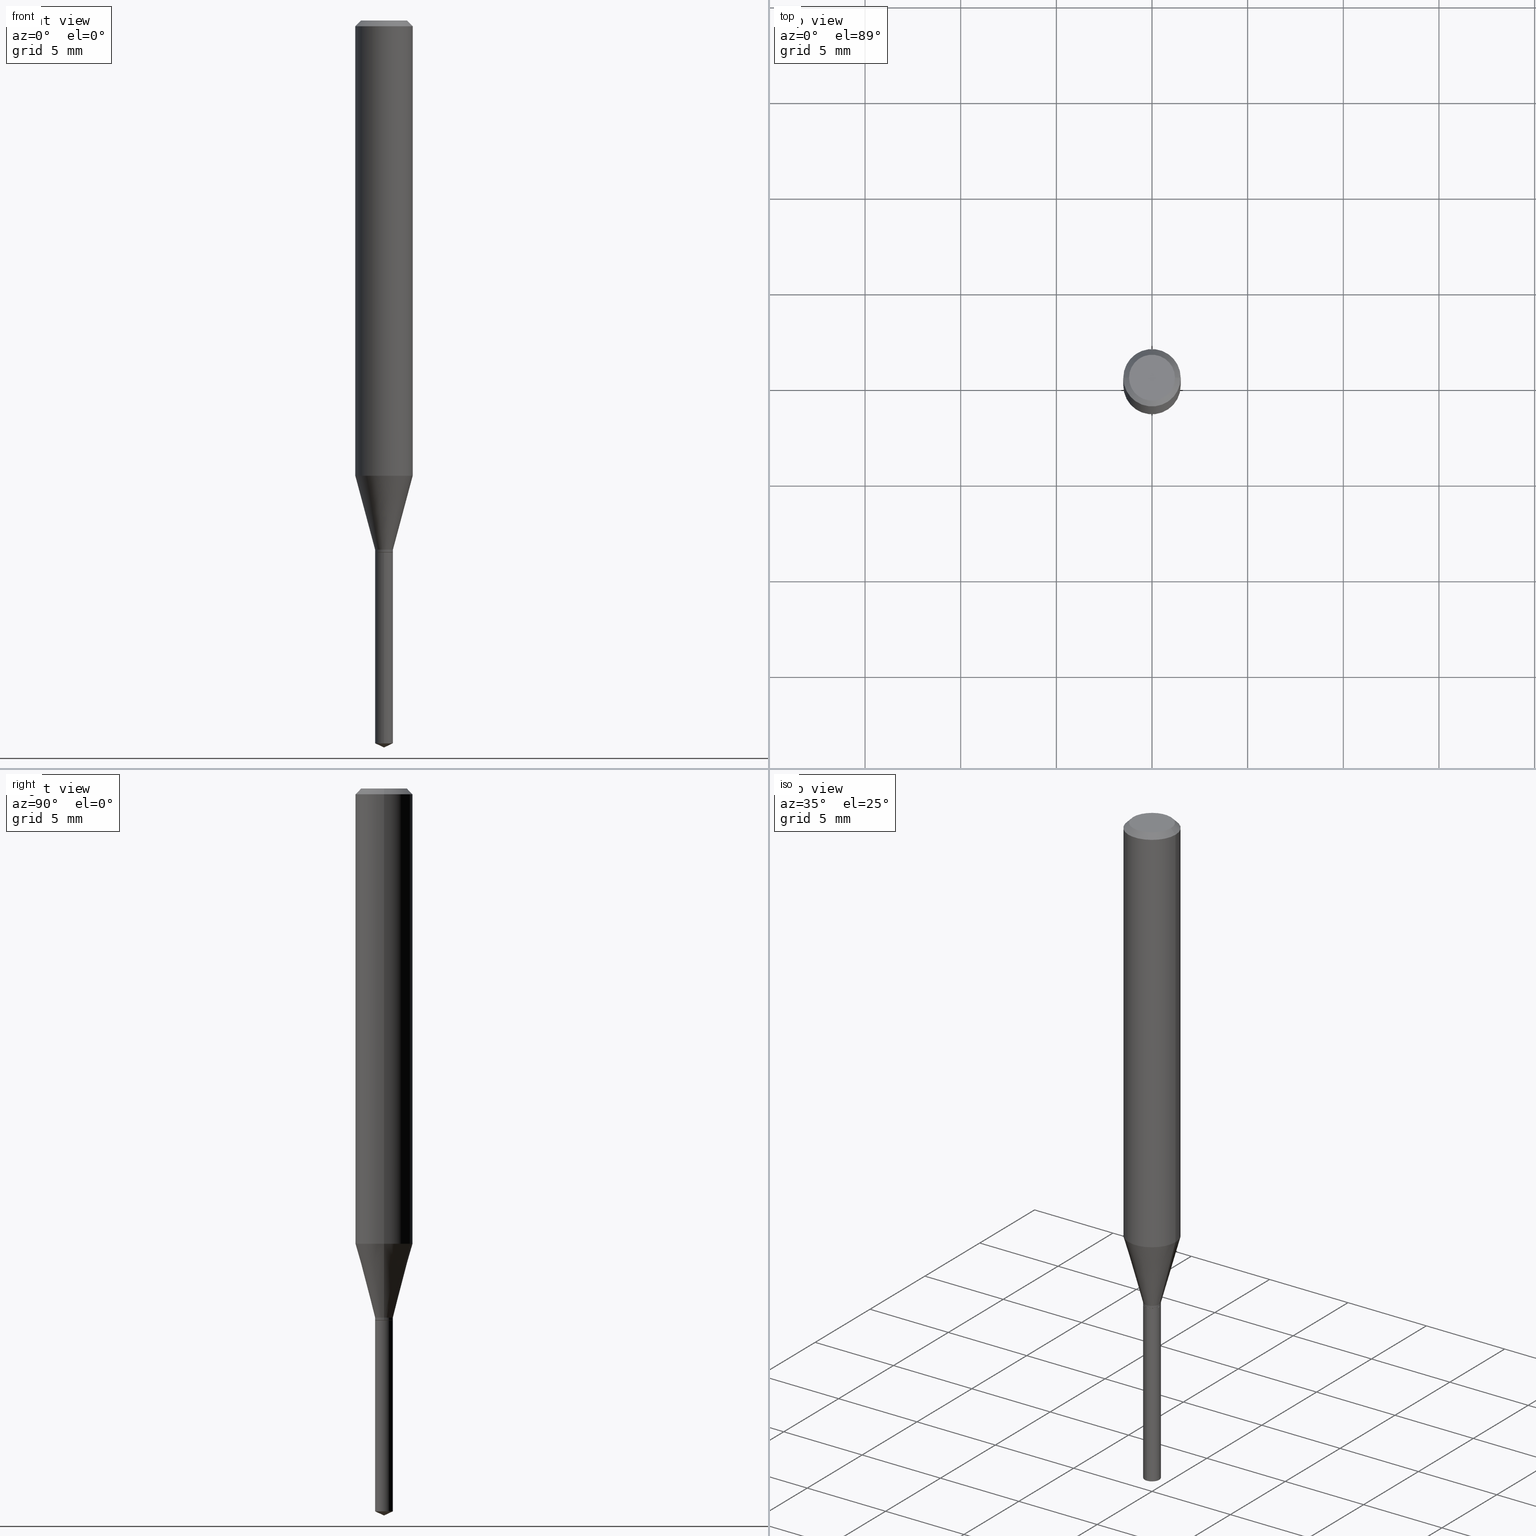
[diagram: canonical four-view strip — front | top / right | iso, engineering-drawing reading convention]
A machine part, canonical four-view strip (front | top / right | iso — engineering-drawing reading convention). The complete STEP part file that produces these views, byte-faithful:
ISO-10303-21;
HEADER;
FILE_DESCRIPTION (( 'STEP AP203' ),
    '1' );
FILE_NAME ('08138.STEP',
    '2024-04-24T12:46:21',
    ( '' ),
    ( '' ),
    'SwSTEP 2.0',
    'SolidWorks 2023',
    '' );
FILE_SCHEMA (( 'CONFIG_CONTROL_DESIGN' ));
ENDSEC;

DATA;
#1 = CIRCLE ( 'NONE', #402, 0.01830000000000000029 ) ;
#2 = CYLINDRICAL_SURFACE ( 'NONE', #373, 0.01830000000000000029 ) ;
#3 = ORIENTED_EDGE ( 'NONE', *, *, #226, .T. ) ;
#4 = FACE_OUTER_BOUND ( 'NONE', #58, .T. ) ;
#5 = ORIENTED_EDGE ( 'NONE', *, *, #30, .T. ) ;
#6 = CARTESIAN_POINT ( 'NONE',  ( 2.888098660104663328E-31, -4.123439461173779030E-17, -0.01181000000000006871 ) ) ;
#7 = ADVANCED_FACE ( 'NONE', ( #104 ), #478, .T. ) ;
#8 = DIRECTION ( 'NONE',  ( 6.982962677686265922E-15, 1.000000000000000000, -3.491492925458510144E-15 ) ) ;
#9 = EDGE_CURVE ( 'NONE', #136, #256, #16, .T. ) ;
#10 = CARTESIAN_POINT ( 'NONE',  ( 3.658671642415649744E-29, -5.223597202677443246E-15, -1.496099999999999985 ) ) ;
#11 = PERSON_AND_ORGANIZATION ( #218, #198 ) ;
#12 = DIRECTION ( 'NONE',  ( 1.000000000000000000, -6.982962677686255667E-15, 0.000000000000000000 ) ) ;
#13 = CALENDAR_DATE ( 2024, 24, 4 ) ;
#14 = CARTESIAN_POINT ( 'NONE',  ( -9.261931828548885815E-28, 1.322367415117763772E-13, 37.87397874015748300 ) ) ;
#15 = ORIENTED_EDGE ( 'NONE', *, *, #46, .F. ) ;
#16 = CIRCLE ( 'NONE', #195, 0.01830000000000000029 ) ;
#17 = AXIS2_PLACEMENT_3D ( 'NONE', #426, #466, #8 ) ;
#18 = PERSON_AND_ORGANIZATION ( #218, #198 ) ;
#19 = DIRECTION ( 'NONE',  ( -6.982962677686265922E-15, -1.000000000000000000, 0.000000000000000000 ) ) ;
#20 = EDGE_LOOP ( 'NONE', ( #413, #101 ) ) ;
#21 = COORDINATED_UNIVERSAL_TIME_OFFSET ( 5, 0, .BEHIND. ) ;
#22 = ORIENTED_EDGE ( 'NONE', *, *, #60, .F. ) ;
#23 = CARTESIAN_POINT ( 'NONE',  ( 0.05905000000000005383, -4.123439461173744271E-16, 2.879382386107502672E-30 ) ) ;
#24 = PRODUCT_RELATED_PRODUCT_CATEGORY ( 'detail', '', ( #433 ) ) ;
#25 = EDGE_CURVE ( 'NONE', #217, #335, #109, .T. ) ;
#26 = ORIENTED_EDGE ( 'NONE', *, *, #30, .F. ) ;
#27 = LOCAL_TIME ( 8, 46, 21.00000000000000000, #476 ) ;
#28 = APPLICATION_PROTOCOL_DEFINITION ( 'international standard', 'config_control_design', 1994, #96 ) ;
#29 = VERTEX_POINT ( 'NONE', #326 ) ;
#30 = EDGE_CURVE ( 'NONE', #64, #382, #375, .T. ) ;
#31 = CARTESIAN_POINT ( 'NONE',  ( 0.01830000000000000029, -3.930011395001844240E-15, -1.088999999999999968 ) ) ;
#32 = EDGE_CURVE ( 'NONE', #29, #329, #33, .T. ) ;
#33 = LINE ( 'NONE', #371, #272 ) ;
#34 = DIRECTION ( 'NONE',  ( -2.445468806185136877E-29, 3.491481338843145188E-15, 1.000000000000000000 ) ) ;
#35 = DATE_AND_TIME ( #419, #341 ) ;
#36 = EDGE_LOOP ( 'NONE', ( #449, #349, #351, #53 ) ) ;
#37 = CIRCLE ( 'NONE', #320, 0.01830000000000000029 ) ;
#38 = FACE_OUTER_BOUND ( 'NONE', #163, .T. ) ;
#39 = DIRECTION ( 'NONE',  ( -6.982962677686265922E-15, -1.000000000000000000, 0.000000000000000000 ) ) ;
#40 = ORIENTED_EDGE ( 'NONE', *, *, #428, .F. ) ;
#41 = LINE ( 'NONE', #45, #84 ) ;
#42 = VECTOR ( 'NONE', #360, 39.37007874015748143 ) ;
#43 = CYLINDRICAL_SURFACE ( 'NONE', #157, 0.01830000000000000029 ) ;
#44 = ORIENTED_EDGE ( 'NONE', *, *, #60, .T. ) ;
#45 = CARTESIAN_POINT ( 'NONE',  ( -0.01830000000000000029, 1.300293206440983361E-16, -9.001651215166479231E-31 ) ) ;
#46 = EDGE_CURVE ( 'NONE', #382, #329, #55, .T. ) ;
#47 = DIRECTION ( 'NONE',  ( -2.445468806185136597E-29, 3.491481338843145583E-15, 1.000000000000000000 ) ) ;
#48 = CYLINDRICAL_SURFACE ( 'NONE', #240, 0.01830000000000000029 ) ;
#49 = CONICAL_SURFACE ( 'NONE', #387, 84.42940631927388040, 1.134464013796313786 ) ;
#50 = COORDINATED_UNIVERSAL_TIME_OFFSET ( 5, 0, .BEHIND. ) ;
#51 = CARTESIAN_POINT ( 'NONE',  ( 0.01830000000000000029, -3.947468801696059275E-15, -1.093999999999999861 ) ) ;
#52 = CARTESIAN_POINT ( 'NONE',  ( 2.676565608369631794E-29, -3.821426325363822773E-15, -1.094499999999999806 ) ) ;
#53 = ORIENTED_EDGE ( 'NONE', *, *, #113, .F. ) ;
#54 = FACE_OUTER_BOUND ( 'NONE', #268, .T. ) ;
#55 = CIRCLE ( 'NONE', #303, 0.05905000000000010241 ) ;
#56 = AXIS2_PLACEMENT_3D ( 'NONE', #390, #167, #120 ) ;
#57 = CYLINDRICAL_SURFACE ( 'NONE', #394, 0.05905000000000005383 ) ;
#58 = EDGE_LOOP ( 'NONE', ( #153, #44, #5, #66 ) ) ;
#59 = EDGE_CURVE ( 'NONE', #191, #222, #316, .T. ) ;
#60 = EDGE_CURVE ( 'NONE', #29, #64, #204, .T. ) ;
#61 =( NAMED_UNIT ( * ) SI_UNIT ( $, .STERADIAN. ) SOLID_ANGLE_UNIT ( ) );
#62 = DATE_AND_TIME ( #290, #166 ) ;
#63 = ORIENTED_EDGE ( 'NONE', *, *, #95, .F. ) ;
#64 = VERTEX_POINT ( 'NONE', #108 ) ;
#65 = DIRECTION ( 'NONE',  ( 2.438088387897960049E-29, -3.491481338843145188E-15, -1.000000000000000000 ) ) ;
#66 = ORIENTED_EDGE ( 'NONE', *, *, #386, .F. ) ;
#67 = LINE ( 'NONE', #408, #97 ) ;
#68 = EDGE_CURVE ( 'NONE', #136, #29, #41, .T. ) ;
#69 = DIRECTION ( 'NONE',  ( 2.445468806185136597E-29, -3.491481338843145583E-15, -1.000000000000000000 ) ) ;
#70 = DIRECTION ( 'NONE',  ( 1.000000000000000000, -6.982962677686266711E-15, 4.876185090822587894E-29 ) ) ;
#71 = PERSON_AND_ORGANIZATION_ROLE ( 'creator' ) ;
#72 = PRODUCT_DEFINITION_SHAPE ( 'NONE', 'NONE',  #287 ) ;
#73 = LINE ( 'NONE', #264, #110 ) ;
#74 = ORIENTED_EDGE ( 'NONE', *, *, #246, .F. ) ;
#75 = AXIS2_PLACEMENT_3D ( 'NONE', #134, #216, #144 ) ;
#76 = CARTESIAN_POINT ( 'NONE',  ( 3.658653776152655930E-29, -5.223622565778476142E-15, -1.496099999999999985 ) ) ;
#77 = DIRECTION ( 'NONE',  ( -2.445468806185136597E-29, 3.491481338843145583E-15, 1.000000000000000000 ) ) ;
#78 = DIRECTION ( 'NONE',  ( -2.445468806185136597E-29, 3.491481338843145583E-15, 1.000000000000000000 ) ) ;
#79 = AXIS2_PLACEMENT_3D ( 'NONE', #424, #82, #237 ) ;
#80 = DIRECTION ( 'NONE',  ( -2.445468806185136597E-29, 3.491481338843145583E-15, 1.000000000000000000 ) ) ;
#81 = CC_DESIGN_PERSON_AND_ORGANIZATION_ASSIGNMENT ( #18, #92, ( #241 ) ) ;
#82 = DIRECTION ( 'NONE',  ( -2.445468806185136597E-29, 3.491481338843145583E-15, 1.000000000000000000 ) ) ;
#83 = CARTESIAN_POINT ( 'NONE',  ( 0.01780000000000000332, -3.945723061026637772E-15, -1.094499999999999806 ) ) ;
#84 = VECTOR ( 'NONE', #201, 39.37007874015748143 ) ;
#85 = CARTESIAN_POINT ( 'NONE',  ( -0.05905000000000010241, -2.851659473211515038E-15, -0.9369189295915679727 ) ) ;
#86 = VECTOR ( 'NONE', #251, 39.37007874015748143 ) ;
#87 = LOCAL_TIME ( 8, 46, 21.00000000000000000, #50 ) ;
#88 = SECURITY_CLASSIFICATION_LEVEL ( 'unclassified' ) ;
#89 = DIRECTION ( 'NONE',  ( -2.445468806185136597E-29, 3.491481338843145583E-15, 1.000000000000000000 ) ) ;
#90 = EDGE_LOOP ( 'NONE', ( #367, #289, #443, #230 ) ) ;
#91 = CARTESIAN_POINT ( 'NONE',  ( 2.675342873966538993E-29, -3.819680584694400481E-15, -1.093999999999999861 ) ) ;
#92 = PERSON_AND_ORGANIZATION_ROLE ( 'creator' ) ;
#93 = CARTESIAN_POINT ( 'NONE',  ( 0.05904999999999999832, -4.535783407291118600E-16, -0.01181000000000006871 ) ) ;
#94 = ORIENTED_EDGE ( 'NONE', *, *, #451, .T. ) ;
#95 = EDGE_CURVE ( 'NONE', #301, #200, #422, .T. ) ;
#96 = APPLICATION_CONTEXT ( 'configuration controlled 3d designs of mechanical parts and assemblies' ) ;
#97 = VECTOR ( 'NONE', #440, 39.37007874015748143 ) ;
#98 = ADVANCED_FACE ( 'NONE', ( #154 ), #2, .T. ) ;
#99 = LINE ( 'NONE', #143, #86 ) ;
#100 = DIRECTION ( 'NONE',  ( 1.000000000000000000, -6.982962677686266711E-15, 4.876176775795935793E-29 ) ) ;
#101 = ORIENTED_EDGE ( 'NONE', *, *, #115, .F. ) ;
#102 = CYLINDRICAL_SURFACE ( 'NONE', #447, 0.05905000000000005383 ) ;
#103 = APPLICATION_CONTEXT ( 'configuration controlled 3d designs of mechanical parts and assemblies' ) ;
#104 = FACE_OUTER_BOUND ( 'NONE', #130, .T. ) ;
#105 = CONICAL_SURFACE ( 'NONE', #359, 84.42940631927388040, 1.134464013796313786 ) ;
#106 = DIRECTION ( 'NONE',  ( 1.000000000000000000, 0.000000000000000000, 0.000000000000000000 ) ) ;
#107 = ADVANCED_BREP_SHAPE_REPRESENTATION ( '08138', ( #293, #128, #412 ), #183 ) ;
#108 = CARTESIAN_POINT ( 'NONE',  ( 0.01830000000000000029, -3.930011395001844240E-15, -1.088999999999999968 ) ) ;
#109 = CIRCLE ( 'NONE', #358, 0.01830000000000000029 ) ;
#110 = VECTOR ( 'NONE', #236, 39.37007874015748143 ) ;
#111 = COORDINATED_UNIVERSAL_TIME_OFFSET ( 5, 0, .BEHIND. ) ;
#112 = DIRECTION ( 'NONE',  ( -6.328713451373368590E-15, -0.9063077870366483824, 0.4226182617407029940 ) ) ;
#113 = EDGE_CURVE ( 'NONE', #200, #416, #172, .T. ) ;
#114 = DIRECTION ( 'NONE',  ( -2.445468806185136597E-29, 3.491481338843145583E-15, 1.000000000000000000 ) ) ;
#115 = EDGE_CURVE ( 'NONE', #488, #249, #259, .T. ) ;
#116 = DIRECTION ( 'NONE',  ( 1.000000000000000000, -6.982962677686266711E-15, 4.876185090822587894E-29 ) ) ;
#117 = AXIS2_PLACEMENT_3D ( 'NONE', #215, #69, #481 ) ;
#118 = AXIS2_PLACEMENT_3D ( 'NONE', #366, #467, #124 ) ;
#119 = DIRECTION ( 'NONE',  ( -6.982962677686267499E-15, -1.000000000000000000, 3.520397390770472803E-15 ) ) ;
#120 = DIRECTION ( 'NONE',  ( 1.000000000000000000, -6.982962677686265922E-15, 4.876176775795935793E-29 ) ) ;
#121 = CARTESIAN_POINT ( 'NONE',  ( 3.658653776152657051E-29, -5.223622565778476142E-15, -1.496099999999999985 ) ) ;
#122 = CARTESIAN_POINT ( 'NONE',  ( 3.637794463447608962E-29, -5.193815473249464484E-15, -1.487566569855763410 ) ) ;
#123 = PERSON_AND_ORGANIZATION_ROLE ( 'design_supplier' ) ;
#124 = DIRECTION ( 'NONE',  ( 1.000000000000000000, -6.982962677686258033E-15, 0.000000000000000000 ) ) ;
#125 = AXIS2_PLACEMENT_3D ( 'NONE', #352, #311, #39 ) ;
#126 = APPROVAL_PERSON_ORGANIZATION ( #135, #262, #322 ) ;
#127 = EDGE_CURVE ( 'NONE', #480, #301, #385, .T. ) ;
#128 = MANIFOLD_SOLID_BREP ( 'Body-Move/Copy2[2]', #278 ) ;
#129 = DIRECTION ( 'NONE',  ( 1.000000000000000000, -6.982962677686258033E-15, 0.000000000000000000 ) ) ;
#130 = EDGE_LOOP ( 'NONE', ( #156, #388, #346, #192 ) ) ;
#131 = CC_DESIGN_DATE_AND_TIME_ASSIGNMENT ( #277, #176, ( #140 ) ) ;
#132 = ADVANCED_FACE ( 'NONE', ( #38 ), #379, .T. ) ;
#133 = APPROVAL_DATE_TIME ( #401, #450 ) ;
#134 = CARTESIAN_POINT ( 'NONE',  ( 2.888098660104663328E-31, -4.123439461173779030E-17, -0.01181000000000006871 ) ) ;
#135 = PERSON_AND_ORGANIZATION ( #218, #198 ) ;
#136 = VERTEX_POINT ( 'NONE', #415 ) ;
#137 = VECTOR ( 'NONE', #112, 39.37007874015748143 ) ;
#138 = CONICAL_SURFACE ( 'NONE', #410, 0.05904999999999999832, 0.7853981633974452814 ) ;
#139 = CARTESIAN_POINT ( 'NONE',  ( 2.676565608369631794E-29, -3.821426325363822773E-15, -1.094499999999999806 ) ) ;
#140 = SECURITY_CLASSIFICATION ( '', '', #88 ) ;
#141 = PERSON_AND_ORGANIZATION ( #218, #198 ) ;
#142 = EDGE_LOOP ( 'NONE', ( #219, #337, #233 ) ) ;
#143 = CARTESIAN_POINT ( 'NONE',  ( 1.300293206441250834E-16, 0.01829999999999617696, -1.094499999999999806 ) ) ;
#144 = DIRECTION ( 'NONE',  ( 1.000000000000000000, -6.982962677686266711E-15, 0.000000000000000000 ) ) ;
#145 = ORIENTED_EDGE ( 'NONE', *, *, #68, .F. ) ;
#146 = CARTESIAN_POINT ( 'NONE',  ( 2.675342873966538993E-29, -3.819680584694400481E-15, -1.093999999999999861 ) ) ;
#147 = AXIS2_PLACEMENT_3D ( 'NONE', #6, #80, #308 ) ;
#148 = AXIS2_PLACEMENT_3D ( 'NONE', #181, #332, #227 ) ;
#149 = APPROVAL_STATUS ( 'not_yet_approved' ) ;
#150 = ORIENTED_EDGE ( 'NONE', *, *, #32, .T. ) ;
#151 = ADVANCED_FACE ( 'NONE', ( #456 ), #49, .T. ) ;
#152 = FACE_OUTER_BOUND ( 'NONE', #90, .T. ) ;
#153 = ORIENTED_EDGE ( 'NONE', *, *, #32, .F. ) ;
#154 = FACE_OUTER_BOUND ( 'NONE', #404, .T. ) ;
#155 = CLOSED_SHELL ( 'NONE', ( #132, #378, #151, #161, #229 ) ) ;
#156 = ORIENTED_EDGE ( 'NONE', *, *, #171, .F. ) ;
#157 = AXIS2_PLACEMENT_3D ( 'NONE', #461, #263, #452 ) ;
#158 = APPROVAL_PERSON_ORGANIZATION ( #324, #450, #250 ) ;
#159 = DESIGN_CONTEXT ( 'detailed design', #103, 'design' ) ;
#160 = CARTESIAN_POINT ( 'NONE',  ( -0.05904999999999999832, -1.236659191178456045E-15, -0.01181000000000006871 ) ) ;
#161 = ADVANCED_FACE ( 'NONE', ( #152 ), #43, .T. ) ;
#162 = DIRECTION ( 'NONE',  ( -2.445460715294871217E-29, 3.491492925458510144E-15, 1.000000000000000000 ) ) ;
#163 = EDGE_LOOP ( 'NONE', ( #380, #407, #190, #306 ) ) ;
#164 = DIRECTION ( 'NONE',  ( 1.000000000000000000, -6.982962677686255667E-15, 0.000000000000000000 ) ) ;
#165 = CARTESIAN_POINT ( 'NONE',  ( 0.01780000000000000332, -3.945723061026637772E-15, -1.094499999999999806 ) ) ;
#166 = LOCAL_TIME ( 8, 46, 21.00000000000000000, #406 ) ;
#167 = DIRECTION ( 'NONE',  ( -2.438088387897960049E-29, 3.491481338843145188E-15, 1.000000000000000000 ) ) ;
#168 = EDGE_CURVE ( 'NONE', #222, #335, #73, .T. ) ;
#169 = SHAPE_DEFINITION_REPRESENTATION ( #72, #107 ) ;
#170 = DIRECTION ( 'NONE',  ( -2.445468806185136597E-29, 3.491481338843145583E-15, 1.000000000000000000 ) ) ;
#171 = EDGE_CURVE ( 'NONE', #480, #416, #234, .T. ) ;
#172 = CIRCLE ( 'NONE', #147, 0.05904999999999999832 ) ;
#173 = CARTESIAN_POINT ( 'NONE',  ( 2.676565608369631794E-29, -3.821426325363822773E-15, -1.094499999999999806 ) ) ;
#174 = AXIS2_PLACEMENT_3D ( 'NONE', #336, #65, #484 ) ;
#175 = APPROVAL_PERSON_ORGANIZATION ( #446, #274, #298 ) ;
#176 = DATE_TIME_ROLE ( 'classification_date' ) ;
#177 = ADVANCED_FACE ( 'NONE', ( #4 ), #285, .T. ) ;
#178 = DIRECTION ( 'NONE',  ( -2.445460715294871217E-29, 3.491492925458510144E-15, 1.000000000000000000 ) ) ;
#179 = EDGE_LOOP ( 'NONE', ( #145, #247, #399, #22 ) ) ;
#180 = ORIENTED_EDGE ( 'NONE', *, *, #246, .T. ) ;
#181 = CARTESIAN_POINT ( 'NONE',  ( 3.637794463447608962E-29, -5.193815473249464484E-15, -1.487566569855763410 ) ) ;
#182 = EDGE_LOOP ( 'NONE', ( #435, #338, #94, #63 ) ) ;
#183 =( GEOMETRIC_REPRESENTATION_CONTEXT ( 3 ) GLOBAL_UNCERTAINTY_ASSIGNED_CONTEXT ( ( #354 ) ) GLOBAL_UNIT_ASSIGNED_CONTEXT ( ( #295, #411, #61 ) ) REPRESENTATION_CONTEXT ( 'NONE', 'WORKASPACE' ) );
#184 = AXIS2_PLACEMENT_3D ( 'NONE', #122, #239, #315 ) ;
#185 = ORIENTED_EDGE ( 'NONE', *, *, #127, .T. ) ;
#186 = CARTESIAN_POINT ( 'NONE',  ( 0.000000000000000000, 0.000000000000000000, 0.000000000000000000 ) ) ;
#187 = CIRCLE ( 'NONE', #75, 0.05904999999999999832 ) ;
#188 = EDGE_CURVE ( 'NONE', #329, #200, #302, .T. ) ;
#189 = CARTESIAN_POINT ( 'NONE',  ( 2.663115529935613220E-29, -3.802223178000185445E-15, -1.088999999999999968 ) ) ;
#190 = ORIENTED_EDGE ( 'NONE', *, *, #369, .F. ) ;
#191 = VERTEX_POINT ( 'NONE', #76 ) ;
#192 = ORIENTED_EDGE ( 'NONE', *, *, #113, .T. ) ;
#193 = DATE_TIME_ROLE ( 'creation_date' ) ;
#194 = CARTESIAN_POINT ( 'NONE',  ( -0.05905000000000005383, 4.195754854663395423E-16, -2.904631170795524694E-30 ) ) ;
#195 = AXIS2_PLACEMENT_3D ( 'NONE', #146, #291, #477 ) ;
#196 = ORIENTED_EDGE ( 'NONE', *, *, #487, .F. ) ;
#197 = AXIS2_PLACEMENT_3D ( 'NONE', #173, #89, #12 ) ;
#198 = ORGANIZATION ( 'UNSPECIFIED', 'UNSPECIFIED', '' ) ;
#199 = DIRECTION ( 'NONE',  ( -6.982962677686267499E-15, -1.000000000000000000, 3.520397390770472803E-15 ) ) ;
#200 = VERTEX_POINT ( 'NONE', #160 ) ;
#201 = DIRECTION ( 'NONE',  ( -2.445468806185136877E-29, 3.491481338843145188E-15, 1.000000000000000000 ) ) ;
#202 = CARTESIAN_POINT ( 'NONE',  ( 2.291206016240548157E-29, -3.271234958677854531E-15, -0.9369189295915679727 ) ) ;
#203 = FACE_OUTER_BOUND ( 'NONE', #179, .T. ) ;
#204 = CIRCLE ( 'NONE', #468, 0.01830000000000000029 ) ;
#205 = CIRCLE ( 'NONE', #79, 0.05905000000000010241 ) ;
#206 = DIRECTION ( 'NONE',  ( -2.445468806185136597E-29, 3.491481338843145583E-15, 1.000000000000000000 ) ) ;
#207 = CC_DESIGN_DATE_AND_TIME_ASSIGNMENT ( #35, #193, ( #287 ) ) ;
#208 = LINE ( 'NONE', #276, #42 ) ;
#209 = ADVANCED_FACE ( 'NONE', ( #347 ), #138, .T. ) ;
#210 = DIRECTION ( 'NONE',  ( -2.445460715294871217E-29, 3.491492925458510144E-15, 1.000000000000000000 ) ) ;
#211 = CC_DESIGN_PERSON_AND_ORGANIZATION_ASSIGNMENT ( #265, #71, ( #287 ) ) ;
#212 = DIRECTION ( 'NONE',  ( 1.000000000000000000, -6.982962677686258033E-15, 0.000000000000000000 ) ) ;
#213 = CIRCLE ( 'NONE', #418, 0.01780000000000000332 ) ;
#214 = VERTEX_POINT ( 'NONE', #307 ) ;
#215 = CARTESIAN_POINT ( 'NONE',  ( 2.888098660104663328E-31, -4.123439461173779030E-17, -0.01181000000000006871 ) ) ;
#216 = DIRECTION ( 'NONE',  ( -2.445468806185136597E-29, 3.491481338843145583E-15, 1.000000000000000000 ) ) ;
#217 = VERTEX_POINT ( 'NONE', #421 ) ;
#218 = PERSON ( 'UNSPECIFIED', 'UNSPECIFIED', 'UNSPECIFIED', ('UNSPECIFIED'), ('UNSPECIFIED'), ('UNSPECIFIED') ) ;
#219 = ORIENTED_EDGE ( 'NONE', *, *, #312, .F. ) ;
#220 = LENGTH_MEASURE_WITH_UNIT ( LENGTH_MEASURE( 0.02539999999999999897 ), #405 );
#221 = APPROVAL_DATE_TIME ( #62, #262 ) ;
#222 = VERTEX_POINT ( 'NONE', #384 ) ;
#223 = CIRCLE ( 'NONE', #365, 0.01830000000000000029 ) ;
#224 = DIRECTION ( 'NONE',  ( -6.982962677686265922E-15, -1.000000000000000000, 0.000000000000000000 ) ) ;
#225 = LINE ( 'NONE', #23, #458 ) ;
#226 = EDGE_CURVE ( 'NONE', #249, #488, #213, .T. ) ;
#227 = DIRECTION ( 'NONE',  ( -6.982962677686265922E-15, -1.000000000000000000, 0.000000000000000000 ) ) ;
#228 = ADVANCED_FACE ( 'NONE', ( #245 ), #430, .T. ) ;
#229 = ADVANCED_FACE ( 'NONE', ( #54 ), #280, .F. ) ;
#230 = ORIENTED_EDGE ( 'NONE', *, *, #25, .F. ) ;
#231 = DIRECTION ( 'NONE',  ( -2.445468806185136597E-29, 3.491481338843145583E-15, 1.000000000000000000 ) ) ;
#232 = CONICAL_SURFACE ( 'NONE', #197, 0.01780000000000000332, 0.7853981633974119747 ) ;
#233 = ORIENTED_EDGE ( 'NONE', *, *, #271, .F. ) ;
#234 = LINE ( 'NONE', #270, #333 ) ;
#235 = DIRECTION ( 'NONE',  ( 0.7071067811865453523, -7.319954787623248157E-15, -0.7071067811865496822 ) ) ;
#236 = DIRECTION ( 'NONE',  ( -2.445460715294871217E-29, 3.491492925458510144E-15, 1.000000000000000000 ) ) ;
#237 = DIRECTION ( 'NONE',  ( 1.000000000000000000, -6.982962677686268288E-15, 0.000000000000000000 ) ) ;
#238 = EDGE_CURVE ( 'NONE', #249, #256, #437, .T. ) ;
#239 = DIRECTION ( 'NONE',  ( -2.445460715294871217E-29, 3.491492925458510144E-15, 1.000000000000000000 ) ) ;
#240 = AXIS2_PLACEMENT_3D ( 'NONE', #325, #462, #279 ) ;
#241 = PRODUCT_DEFINITION_FORMATION_WITH_SPECIFIED_SOURCE ( 'ANY', '', #433, .NOT_KNOWN. ) ;
#242 = CARTESIAN_POINT ( 'NONE',  ( -1.277882170016318992E-16, -0.01830000000000382362, -1.094499999999999806 ) ) ;
#243 = CC_DESIGN_APPROVAL ( #262, ( #287 ) ) ;
#244 = APPROVAL_STATUS ( 'not_yet_approved' ) ;
#245 = FACE_OUTER_BOUND ( 'NONE', #258, .T. ) ;
#246 = EDGE_CURVE ( 'NONE', #256, #136, #223, .T. ) ;
#247 = ORIENTED_EDGE ( 'NONE', *, *, #9, .T. ) ;
#248 = PLANE ( 'NONE',  #56 ) ;
#249 = VERTEX_POINT ( 'NONE', #83 ) ;
#250 = APPROVAL_ROLE ( '' ) ;
#251 = DIRECTION ( 'NONE',  ( -2.445460715294871217E-29, 3.491492925458510144E-15, 1.000000000000000000 ) ) ;
#252 = VECTOR ( 'NONE', #317, 39.37007874015748143 ) ;
#253 = CARTESIAN_POINT ( 'NONE',  ( -0.01780000000000000332, -3.692300491224413469E-15, -1.094499999999999806 ) ) ;
#254 = APPROVAL_STATUS ( 'not_yet_approved' ) ;
#255 = CC_DESIGN_PERSON_AND_ORGANIZATION_ASSIGNMENT ( #141, #381, ( #433 ) ) ;
#256 = VERTEX_POINT ( 'NONE', #51 ) ;
#257 = DIRECTION ( 'NONE',  ( -2.445468806185136597E-29, 3.491481338843145583E-15, 1.000000000000000000 ) ) ;
#258 = EDGE_LOOP ( 'NONE', ( #3, #453, #74, #483 ) ) ;
#259 = CIRCLE ( 'NONE', #392, 0.01780000000000000332 ) ;
#260 = AXIS2_PLACEMENT_3D ( 'NONE', #189, #78, #383 ) ;
#261 = MECHANICAL_CONTEXT ( 'NONE', #96, 'mechanical' ) ;
#262 = APPROVAL ( #254, 'UNSPECIFIED' ) ;
#263 = DIRECTION ( 'NONE',  ( -2.445460715294871217E-29, 3.491492925458510144E-15, 1.000000000000000000 ) ) ;
#264 = CARTESIAN_POINT ( 'NONE',  ( -1.277882170016318992E-16, -0.01830000000000382362, -1.094499999999999806 ) ) ;
#265 = PERSON_AND_ORGANIZATION ( #218, #198 ) ;
#266 = CARTESIAN_POINT ( 'NONE',  ( -0.05904999999999999832, 3.711095515056362547E-16, -0.01181000000000006871 ) ) ;
#267 = ORIENTED_EDGE ( 'NONE', *, *, #238, .T. ) ;
#268 = EDGE_LOOP ( 'NONE', ( #438, #423 ) ) ;
#269 = CARTESIAN_POINT ( 'NONE',  ( 2.663115529935613220E-29, -3.802223178000185445E-15, -1.088999999999999968 ) ) ;
#270 = CARTESIAN_POINT ( 'NONE',  ( 0.05904999999999999832, -4.463468013801466955E-16, -0.01181000000000006871 ) ) ;
#271 = EDGE_CURVE ( 'NONE', #214, #222, #304, .T. ) ;
#272 = VECTOR ( 'NONE', #288, 39.37007874015748854 ) ;
#273 = CARTESIAN_POINT ( 'NONE',  ( 0.05905000000000010241, -3.683578904795229057E-15, -0.9369189295915679727 ) ) ;
#274 = APPROVAL ( #149, 'UNSPECIFIED' ) ;
#275 = DIRECTION ( 'NONE',  ( 1.000000000000000000, -6.982962677686255667E-15, 0.000000000000000000 ) ) ;
#276 = CARTESIAN_POINT ( 'NONE',  ( 0.01830000000000000029, -1.277882170016586711E-16, 8.923403499706563286E-31 ) ) ;
#277 = DATE_AND_TIME ( #13, #87 ) ;
#278 = CLOSED_SHELL ( 'NONE', ( #228, #209, #463, #353, #98, #286, #177, #432, #7, #427, #310, #294 ) ) ;
#279 = DIRECTION ( 'NONE',  ( 1.000000000000000000, -6.982962677686265922E-15, 4.876176775795936353E-29 ) ) ;
#280 = PLANE ( 'NONE',  #17 ) ;
#281 = EDGE_LOOP ( 'NONE', ( #474, #185 ) ) ;
#282 = FACE_OUTER_BOUND ( 'NONE', #36, .T. ) ;
#283 = DIRECTION ( 'NONE',  ( 0.2588190451025211281, 1.565188264969622954E-15, 0.9659258262890679791 ) ) ;
#284 = FACE_OUTER_BOUND ( 'NONE', #444, .T. ) ;
#285 = CONICAL_SURFACE ( 'NONE', #260, 0.01830000000000000029, 0.2617993877991498519 ) ;
#286 = ADVANCED_FACE ( 'NONE', ( #203 ), #48, .T. ) ;
#287 = PRODUCT_DEFINITION ( 'UNKNOWN', '', #241, #159 ) ;
#288 = DIRECTION ( 'NONE',  ( -0.2588190451025211281, 5.211531920934547886E-15, 0.9659258262890679791 ) ) ;
#289 = ORIENTED_EDGE ( 'NONE', *, *, #271, .T. ) ;
#290 = CALENDAR_DATE ( 2024, 24, 4 ) ;
#291 = DIRECTION ( 'NONE',  ( -2.445468806185136597E-29, 3.491481338843145583E-15, 1.000000000000000000 ) ) ;
#292 = EDGE_CURVE ( 'NONE', #256, #64, #208, .T. ) ;
#293 = MANIFOLD_SOLID_BREP ( 'Body-Move/Copy2[1]', #155 ) ;
#294 = ADVANCED_FACE ( 'NONE', ( #362 ), #232, .T. ) ;
#295 =( CONVERSION_BASED_UNIT ( 'INCH', #220 ) LENGTH_UNIT ( ) NAMED_UNIT ( #345 ) );
#296 = VECTOR ( 'NONE', #283, 39.37007874015748854 ) ;
#297 = VECTOR ( 'NONE', #472, 39.37007874015748143 ) ;
#298 = APPROVAL_ROLE ( '' ) ;
#299 = ORIENTED_EDGE ( 'NONE', *, *, #68, .T. ) ;
#300 = CARTESIAN_POINT ( 'NONE',  ( 2.676565608369631794E-29, -3.821426325363822773E-15, -1.094499999999999806 ) ) ;
#301 = VERTEX_POINT ( 'NONE', #396 ) ;
#302 = LINE ( 'NONE', #194, #455 ) ;
#303 = AXIS2_PLACEMENT_3D ( 'NONE', #202, #356, #425 ) ;
#304 = CIRCLE ( 'NONE', #184, 0.01830000000000000029 ) ;
#305 = CC_DESIGN_APPROVAL ( #274, ( #241 ) ) ;
#306 = ORIENTED_EDGE ( 'NONE', *, *, #168, .F. ) ;
#307 = CARTESIAN_POINT ( 'NONE',  ( 1.300293206441347223E-16, 0.01829999999999480653, -1.487566569855763410 ) ) ;
#308 = DIRECTION ( 'NONE',  ( 1.000000000000000000, -6.982962677686266711E-15, 0.000000000000000000 ) ) ;
#309 = ORIENTED_EDGE ( 'NONE', *, *, #9, .F. ) ;
#310 = ADVANCED_FACE ( 'NONE', ( #429 ), #248, .F. ) ;
#311 = DIRECTION ( 'NONE',  ( -2.445460715294871217E-29, 3.491492925458510144E-15, 1.000000000000000000 ) ) ;
#312 = EDGE_CURVE ( 'NONE', #191, #214, #398, .T. ) ;
#313 = CIRCLE ( 'NONE', #148, 0.01830000000000000029 ) ;
#314 = LOCAL_TIME ( 8, 46, 21.00000000000000000, #21 ) ;
#315 = DIRECTION ( 'NONE',  ( -6.982962677686265922E-15, -1.000000000000000000, 0.000000000000000000 ) ) ;
#316 = LINE ( 'NONE', #121, #137 ) ;
#317 = DIRECTION ( 'NONE',  ( 6.439704144417024042E-15, 0.9063077870366512689, 0.4226182617406966657 ) ) ;
#318 = FACE_OUTER_BOUND ( 'NONE', #342, .T. ) ;
#319 = PERSON_AND_ORGANIZATION ( #218, #198 ) ;
#320 = AXIS2_PLACEMENT_3D ( 'NONE', #434, #170, #212 ) ;
#321 = DIRECTION ( 'NONE',  ( -2.445468806185136597E-29, 3.491481338843145583E-15, 1.000000000000000000 ) ) ;
#322 = APPROVAL_ROLE ( '' ) ;
#323 = ORIENTED_EDGE ( 'NONE', *, *, #292, .F. ) ;
#324 = PERSON_AND_ORGANIZATION ( #218, #198 ) ;
#325 = CARTESIAN_POINT ( 'NONE',  ( 0.000000000000000000, 0.000000000000000000, 0.000000000000000000 ) ) ;
#326 = CARTESIAN_POINT ( 'NONE',  ( -0.01830000000000000029, -3.680922560703194750E-15, -1.088999999999999968 ) ) ;
#327 = CARTESIAN_POINT ( 'NONE',  ( 0.000000000000000000, 0.000000000000000000, 0.000000000000000000 ) ) ;
#328 = EDGE_CURVE ( 'NONE', #64, #29, #37, .T. ) ;
#329 = VERTEX_POINT ( 'NONE', #85 ) ;
#330 = ORIENTED_EDGE ( 'NONE', *, *, #328, .F. ) ;
#331 = VECTOR ( 'NONE', #420, 39.37007874015748143 ) ;
#332 = DIRECTION ( 'NONE',  ( -2.445460715294871217E-29, 3.491492925458510144E-15, 1.000000000000000000 ) ) ;
#333 = VECTOR ( 'NONE', #235, 39.37007874015748143 ) ;
#334 = ORIENTED_EDGE ( 'NONE', *, *, #464, .F. ) ;
#335 = VERTEX_POINT ( 'NONE', #242 ) ;
#336 = CARTESIAN_POINT ( 'NONE',  ( 4.132873053354867254E-48, -5.900647395337818946E-34, -1.690012582823346072E-19 ) ) ;
#337 = ORIENTED_EDGE ( 'NONE', *, *, #59, .T. ) ;
#338 = ORIENTED_EDGE ( 'NONE', *, *, #171, .T. ) ;
#339 = DIRECTION ( 'NONE',  ( -2.445468806185136597E-29, 3.491481338843145583E-15, 1.000000000000000000 ) ) ;
#340 = CONICAL_SURFACE ( 'NONE', #118, 0.01830000000000000029, 0.2617993877991498519 ) ;
#341 = LOCAL_TIME ( 8, 46, 21.00000000000000000, #111 ) ;
#342 = EDGE_LOOP ( 'NONE', ( #403, #150, #15, #26 ) ) ;
#343 = CARTESIAN_POINT ( 'NONE',  ( -9.261931828548885815E-28, 1.322367415117763772E-13, 37.87397874015748300 ) ) ;
#344 = EDGE_LOOP ( 'NONE', ( #334, #473, #267, #309 ) ) ;
#345 = DIMENSIONAL_EXPONENTS ( 1.000000000000000000, 0.000000000000000000, 0.000000000000000000, 0.000000000000000000, 0.000000000000000000, 0.000000000000000000, 0.000000000000000000 ) ;
#346 = ORIENTED_EDGE ( 'NONE', *, *, #95, .T. ) ;
#347 = FACE_OUTER_BOUND ( 'NONE', #182, .T. ) ;
#348 = DIRECTION ( 'NONE',  ( 1.000000000000000000, -6.982962677686265922E-15, 4.876176775795936353E-29 ) ) ;
#349 = ORIENTED_EDGE ( 'NONE', *, *, #386, .T. ) ;
#350 = AXIS2_PLACEMENT_3D ( 'NONE', #442, #339, #70 ) ;
#351 = ORIENTED_EDGE ( 'NONE', *, *, #487, .T. ) ;
#352 = CARTESIAN_POINT ( 'NONE',  ( 2.676565608369631794E-29, -3.821426325363822773E-15, -1.094499999999999806 ) ) ;
#353 = ADVANCED_FACE ( 'NONE', ( #318 ), #340, .T. ) ;
#354 = UNCERTAINTY_MEASURE_WITH_UNIT (LENGTH_MEASURE( 1.000000000000000082E-05 ), #295, 'distance_accuracy_value', 'NONE');
#355 = CARTESIAN_POINT ( 'NONE',  ( 0.000000000000000000, 0.000000000000000000, 0.000000000000000000 ) ) ;
#356 = DIRECTION ( 'NONE',  ( -2.445468806185136597E-29, 3.491481338843145583E-15, 1.000000000000000000 ) ) ;
#357 = CARTESIAN_POINT ( 'NONE',  ( 2.676565608369631794E-29, -3.821426325363822773E-15, -1.094499999999999806 ) ) ;
#358 = AXIS2_PLACEMENT_3D ( 'NONE', #139, #368, #224 ) ;
#359 = AXIS2_PLACEMENT_3D ( 'NONE', #14, #178, #119 ) ;
#360 = DIRECTION ( 'NONE',  ( -2.445468806185136877E-29, 3.491481338843145188E-15, 1.000000000000000000 ) ) ;
#361 = CALENDAR_DATE ( 2024, 24, 4 ) ;
#362 = FACE_OUTER_BOUND ( 'NONE', #344, .T. ) ;
#363 = FACE_OUTER_BOUND ( 'NONE', #470, .T. ) ;
#364 = DATE_AND_TIME ( #436, #27 ) ;
#365 = AXIS2_PLACEMENT_3D ( 'NONE', #91, #321, #129 ) ;
#366 = CARTESIAN_POINT ( 'NONE',  ( 2.663115529935613220E-29, -3.802223178000185445E-15, -1.088999999999999968 ) ) ;
#367 = ORIENTED_EDGE ( 'NONE', *, *, #471, .F. ) ;
#368 = DIRECTION ( 'NONE',  ( -2.445460715294871217E-29, 3.491492925458510144E-15, 1.000000000000000000 ) ) ;
#369 = EDGE_CURVE ( 'NONE', #335, #217, #1, .T. ) ;
#370 = CARTESIAN_POINT ( 'NONE',  ( 0.000000000000000000, 0.000000000000000000, 0.000000000000000000 ) ) ;
#371 = CARTESIAN_POINT ( 'NONE',  ( -0.01830000000000000029, -3.672193857356087232E-15, -1.088999999999999968 ) ) ;
#372 = ORIENTED_EDGE ( 'NONE', *, *, #451, .F. ) ;
#373 = AXIS2_PLACEMENT_3D ( 'NONE', #355, #114, #348 ) ;
#374 = CC_DESIGN_SECURITY_CLASSIFICATION ( #140, ( #241 ) ) ;
#375 = LINE ( 'NONE', #31, #296 ) ;
#376 = ORIENTED_EDGE ( 'NONE', *, *, #188, .T. ) ;
#377 = DIRECTION ( 'NONE',  ( -2.445468806185136877E-29, 3.491481338843145188E-15, 1.000000000000000000 ) ) ;
#378 = ADVANCED_FACE ( 'NONE', ( #363 ), #105, .T. ) ;
#379 = CYLINDRICAL_SURFACE ( 'NONE', #125, 0.01830000000000000029 ) ;
#380 = ORIENTED_EDGE ( 'NONE', *, *, #428, .T. ) ;
#381 = PERSON_AND_ORGANIZATION_ROLE ( 'design_owner' ) ;
#382 = VERTEX_POINT ( 'NONE', #273 ) ;
#383 = DIRECTION ( 'NONE',  ( 1.000000000000000000, -6.982962677686258033E-15, 0.000000000000000000 ) ) ;
#384 = CARTESIAN_POINT ( 'NONE',  ( -1.277882170016222849E-16, -0.01830000000000519753, -1.487566569855763410 ) ) ;
#385 = CIRCLE ( 'NONE', #454, 0.04724000000000000421 ) ;
#386 = EDGE_CURVE ( 'NONE', #329, #382, #205, .T. ) ;
#387 = AXIS2_PLACEMENT_3D ( 'NONE', #343, #162, #199 ) ;
#388 = ORIENTED_EDGE ( 'NONE', *, *, #397, .F. ) ;
#389 = CARTESIAN_POINT ( 'NONE',  ( 8.265746106709734507E-48, -1.180129479067563789E-33, -3.380025165646692144E-19 ) ) ;
#390 = CARTESIAN_POINT ( 'NONE',  ( 2.676565608369631794E-29, -3.821426325363822773E-15, -1.094499999999999806 ) ) ;
#391 = CARTESIAN_POINT ( 'NONE',  ( 2.676565608369631794E-29, -3.821426325363822773E-15, -1.094499999999999806 ) ) ;
#392 = AXIS2_PLACEMENT_3D ( 'NONE', #300, #77, #164 ) ;
#393 = APPROVAL_DATE_TIME ( #364, #274 ) ;
#394 = AXIS2_PLACEMENT_3D ( 'NONE', #370, #482, #100 ) ;
#395 = DIRECTION ( 'NONE',  ( 1.000000000000000000, -6.982962677686255667E-15, 0.000000000000000000 ) ) ;
#396 = CARTESIAN_POINT ( 'NONE',  ( -0.04724000000000000421, 3.504923541997677355E-16, -3.380025165670481712E-19 ) ) ;
#397 = EDGE_CURVE ( 'NONE', #301, #480, #479, .T. ) ;
#398 = LINE ( 'NONE', #10, #252 ) ;
#399 = ORIENTED_EDGE ( 'NONE', *, *, #292, .T. ) ;
#400 = CC_DESIGN_PERSON_AND_ORGANIZATION_ASSIGNMENT ( #11, #469, ( #140 ) ) ;
#401 = DATE_AND_TIME ( #361, #314 ) ;
#402 = AXIS2_PLACEMENT_3D ( 'NONE', #52, #210, #19 ) ;
#403 = ORIENTED_EDGE ( 'NONE', *, *, #328, .T. ) ;
#404 = EDGE_LOOP ( 'NONE', ( #180, #299, #330, #323 ) ) ;
#405 =( LENGTH_UNIT ( ) NAMED_UNIT ( * ) SI_UNIT ( $, .METRE. ) );
#406 = COORDINATED_UNIVERSAL_TIME_OFFSET ( 5, 0, .BEHIND. ) ;
#407 = ORIENTED_EDGE ( 'NONE', *, *, #471, .T. ) ;
#408 = CARTESIAN_POINT ( 'NONE',  ( -0.01780000000000000332, -3.694949718398524670E-15, -1.094499999999999806 ) ) ;
#409 = ORIENTED_EDGE ( 'NONE', *, *, #46, .T. ) ;
#410 = AXIS2_PLACEMENT_3D ( 'NONE', #460, #459, #490 ) ;
#411 =( NAMED_UNIT ( * ) PLANE_ANGLE_UNIT ( ) SI_UNIT ( $, .RADIAN. ) );
#412 = AXIS2_PLACEMENT_3D ( 'NONE', #327, #448, #106 ) ;
#413 = ORIENTED_EDGE ( 'NONE', *, *, #226, .F. ) ;
#414 = PLANE ( 'NONE',  #174 ) ;
#415 = CARTESIAN_POINT ( 'NONE',  ( -0.01830000000000000029, -3.680922560703194750E-15, -1.093999999999999861 ) ) ;
#416 = VERTEX_POINT ( 'NONE', #93 ) ;
#417 = DIRECTION ( 'NONE',  ( -2.445468806185136597E-29, 3.491481338843145583E-15, 1.000000000000000000 ) ) ;
#418 = AXIS2_PLACEMENT_3D ( 'NONE', #357, #47, #395 ) ;
#419 = CALENDAR_DATE ( 2024, 24, 4 ) ;
#420 = DIRECTION ( 'NONE',  ( -0.7071067811865453523, 2.468850131082234184E-15, -0.7071067811865496822 ) ) ;
#421 = CARTESIAN_POINT ( 'NONE',  ( 1.300293206441347716E-16, 0.01829999999999618043, -1.094499999999999806 ) ) ;
#422 = LINE ( 'NONE', #266, #331 ) ;
#423 = ORIENTED_EDGE ( 'NONE', *, *, #25, .T. ) ;
#424 = CARTESIAN_POINT ( 'NONE',  ( 2.291206016240548157E-29, -3.271234958677854531E-15, -0.9369189295915679727 ) ) ;
#425 = DIRECTION ( 'NONE',  ( 1.000000000000000000, -6.982962677686268288E-15, 0.000000000000000000 ) ) ;
#426 = CARTESIAN_POINT ( 'NONE',  ( 2.676565608369631794E-29, -3.821426325363822773E-15, -1.094499999999999806 ) ) ;
#427 = ADVANCED_FACE ( 'NONE', ( #439 ), #414, .F. ) ;
#428 = EDGE_CURVE ( 'NONE', #222, #214, #313, .T. ) ;
#429 = FACE_OUTER_BOUND ( 'NONE', #20, .T. ) ;
#430 = CONICAL_SURFACE ( 'NONE', #486, 0.01780000000000000332, 0.7853981633974119747 ) ;
#431 = CC_DESIGN_APPROVAL ( #450, ( #140 ) ) ;
#432 = ADVANCED_FACE ( 'NONE', ( #282 ), #102, .T. ) ;
#433 = PRODUCT ( '08138', '08138', '', ( #261 ) ) ;
#434 = CARTESIAN_POINT ( 'NONE',  ( 2.663115529935613220E-29, -3.802223178000185445E-15, -1.088999999999999968 ) ) ;
#435 = ORIENTED_EDGE ( 'NONE', *, *, #127, .F. ) ;
#436 = CALENDAR_DATE ( 2024, 24, 4 ) ;
#437 = LINE ( 'NONE', #165, #297 ) ;
#438 = ORIENTED_EDGE ( 'NONE', *, *, #369, .T. ) ;
#439 = FACE_OUTER_BOUND ( 'NONE', #281, .T. ) ;
#440 = DIRECTION ( 'NONE',  ( -0.7071067811865218156, 7.493145998870261075E-15, 0.7071067811865732189 ) ) ;
#441 = ORIENTED_EDGE ( 'NONE', *, *, #59, .F. ) ;
#442 = CARTESIAN_POINT ( 'NONE',  ( 8.265746106709734507E-48, -1.180129479067563789E-33, -3.380025165646692144E-19 ) ) ;
#443 = ORIENTED_EDGE ( 'NONE', *, *, #168, .T. ) ;
#444 = EDGE_LOOP ( 'NONE', ( #409, #376, #372, #196 ) ) ;
#445 = CARTESIAN_POINT ( 'NONE',  ( 0.04724000000000000421, -3.852183633974369345E-16, -3.380025165621689721E-19 ) ) ;
#446 = PERSON_AND_ORGANIZATION ( #218, #198 ) ;
#447 = AXIS2_PLACEMENT_3D ( 'NONE', #186, #257, #475 ) ;
#448 = DIRECTION ( 'NONE',  ( 0.000000000000000000, 0.000000000000000000, 1.000000000000000000 ) ) ;
#449 = ORIENTED_EDGE ( 'NONE', *, *, #188, .F. ) ;
#450 = APPROVAL ( #244, 'UNSPECIFIED' ) ;
#451 = EDGE_CURVE ( 'NONE', #416, #200, #187, .T. ) ;
#452 = DIRECTION ( 'NONE',  ( -6.982962677686265922E-15, -1.000000000000000000, 0.000000000000000000 ) ) ;
#453 = ORIENTED_EDGE ( 'NONE', *, *, #464, .T. ) ;
#454 = AXIS2_PLACEMENT_3D ( 'NONE', #389, #231, #116 ) ;
#455 = VECTOR ( 'NONE', #377, 39.37007874015748143 ) ;
#456 = FACE_OUTER_BOUND ( 'NONE', #142, .T. ) ;
#457 = ORIENTED_EDGE ( 'NONE', *, *, #312, .T. ) ;
#458 = VECTOR ( 'NONE', #34, 39.37007874015748143 ) ;
#459 = DIRECTION ( 'NONE',  ( 2.445468806185136597E-29, -3.491481338843145583E-15, -1.000000000000000000 ) ) ;
#460 = CARTESIAN_POINT ( 'NONE',  ( 2.888098660104663328E-31, -4.123439461173779030E-17, -0.01181000000000006871 ) ) ;
#461 = CARTESIAN_POINT ( 'NONE',  ( 2.676565608369631794E-29, -3.821426325363822773E-15, -1.094499999999999806 ) ) ;
#462 = DIRECTION ( 'NONE',  ( -2.445468806185136597E-29, 3.491481338843145583E-15, 1.000000000000000000 ) ) ;
#463 = ADVANCED_FACE ( 'NONE', ( #284 ), #57, .T. ) ;
#464 = EDGE_CURVE ( 'NONE', #488, #136, #67, .T. ) ;
#465 = APPLICATION_PROTOCOL_DEFINITION ( 'international standard', 'config_control_design', 1994, #103 ) ;
#466 = DIRECTION ( 'NONE',  ( 2.445460715294871217E-29, -3.491492925458510144E-15, -1.000000000000000000 ) ) ;
#467 = DIRECTION ( 'NONE',  ( -2.445468806185136597E-29, 3.491481338843145583E-15, 1.000000000000000000 ) ) ;
#468 = AXIS2_PLACEMENT_3D ( 'NONE', #269, #417, #489 ) ;
#469 = PERSON_AND_ORGANIZATION_ROLE ( 'classification_officer' ) ;
#470 = EDGE_LOOP ( 'NONE', ( #441, #457, #40 ) ) ;
#471 = EDGE_CURVE ( 'NONE', #214, #217, #99, .T. ) ;
#472 = DIRECTION ( 'NONE',  ( 0.7071067811865218156, -2.468850131081987665E-15, 0.7071067811865732189 ) ) ;
#473 = ORIENTED_EDGE ( 'NONE', *, *, #115, .T. ) ;
#474 = ORIENTED_EDGE ( 'NONE', *, *, #397, .T. ) ;
#475 = DIRECTION ( 'NONE',  ( 1.000000000000000000, -6.982962677686266711E-15, 4.876176775795935793E-29 ) ) ;
#476 = COORDINATED_UNIVERSAL_TIME_OFFSET ( 5, 0, .BEHIND. ) ;
#477 = DIRECTION ( 'NONE',  ( 1.000000000000000000, -6.982962677686258033E-15, 0.000000000000000000 ) ) ;
#478 = CONICAL_SURFACE ( 'NONE', #117, 0.05904999999999999832, 0.7853981633974452814 ) ;
#479 = CIRCLE ( 'NONE', #350, 0.04724000000000000421 ) ;
#480 = VERTEX_POINT ( 'NONE', #445 ) ;
#481 = DIRECTION ( 'NONE',  ( -1.000000000000000000, 6.982962677686266711E-15, 0.000000000000000000 ) ) ;
#482 = DIRECTION ( 'NONE',  ( -2.445468806185136597E-29, 3.491481338843145583E-15, 1.000000000000000000 ) ) ;
#483 = ORIENTED_EDGE ( 'NONE', *, *, #238, .F. ) ;
#484 = DIRECTION ( 'NONE',  ( -1.000000000000000000, 6.982962677686265922E-15, -4.876176775795935793E-29 ) ) ;
#485 = CC_DESIGN_PERSON_AND_ORGANIZATION_ASSIGNMENT ( #319, #123, ( #241 ) ) ;
#486 = AXIS2_PLACEMENT_3D ( 'NONE', #391, #206, #275 ) ;
#487 = EDGE_CURVE ( 'NONE', #382, #416, #225, .T. ) ;
#488 = VERTEX_POINT ( 'NONE', #253 ) ;
#489 = DIRECTION ( 'NONE',  ( 1.000000000000000000, -6.982962677686258033E-15, 0.000000000000000000 ) ) ;
#490 = DIRECTION ( 'NONE',  ( -1.000000000000000000, 6.982962677686266711E-15, 0.000000000000000000 ) ) ;
ENDSEC;
END-ISO-10303-21;
